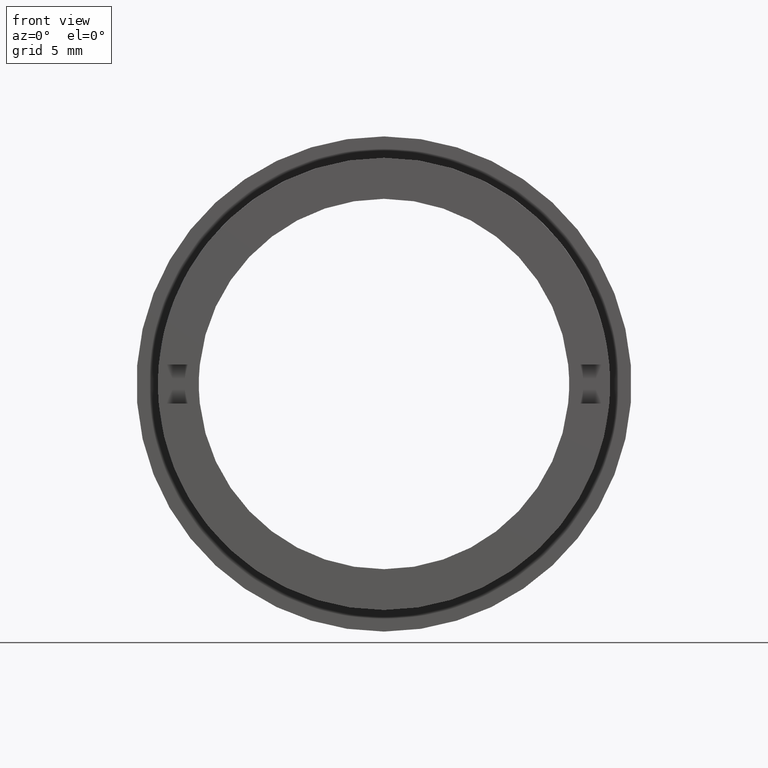
[diagram: clean part render]
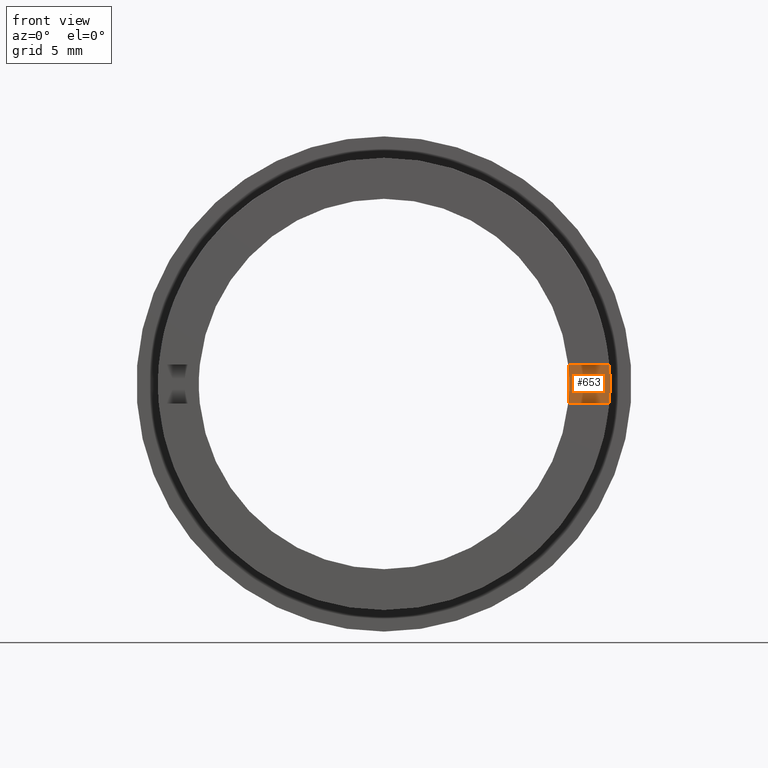
[diagram: same view with one face highlighted and labeled with its STEP entity id]
A machine part, front view. The second image highlights one B-rep face of the part: STEP entity #653.
In plain terms, the highlighted planar face has unit normal (0, 1, 0).
Its self-contained STEP definition (entity closure, byte-faithful):
#5 = CIRCLE ( 'NONE', #359, 11.59999999999999800 ) ;
#20 = CARTESIAN_POINT ( 'NONE',  ( -39.50000000000002100, 2.000000000000000000, -0.9999999999999995600 ) ) ;
#27 = LINE ( 'NONE', #20, #64 ) ;
#64 = VECTOR ( 'NONE', #563, 1000.000000000000000 ) ;
#98 = AXIS2_PLACEMENT_3D ( 'NONE', #392, #919, #839 ) ;
#116 = ORIENTED_EDGE ( 'NONE', *, *, #402, .T. ) ;
#125 = CIRCLE ( 'NONE', #98, 9.499999999999996400 ) ;
#139 = FACE_OUTER_BOUND ( 'NONE', #1098, .T. ) ;
#188 = CARTESIAN_POINT ( 'NONE',  ( 9.447221813845589000, 1.999999999999998200, 1.000000000000000200 ) ) ;
#255 = PLANE ( 'NONE',  #458 ) ;
#264 = CARTESIAN_POINT ( 'NONE',  ( 9.447221813845587200, 2.000000000000000000, -0.9999999999999995600 ) ) ;
#359 = AXIS2_PLACEMENT_3D ( 'NONE', #553, #1070, #457 ) ;
#364 = ORIENTED_EDGE ( 'NONE', *, *, #535, .T. ) ;
#392 = CARTESIAN_POINT ( 'NONE',  ( 0.0000000000000000000, 1.999999999999998200, 0.0000000000000000000 ) ) ;
#402 = EDGE_CURVE ( 'NONE', #637, #719, #27, .T. ) ;
#426 = DIRECTION ( 'NONE',  ( 0.0000000000000000000, 1.000000000000000000, 0.0000000000000000000 ) ) ;
#457 = DIRECTION ( 'NONE',  ( 1.154631945610162600E-014, 0.0000000000000000000, 1.000000000000000000 ) ) ;
#458 = AXIS2_PLACEMENT_3D ( 'NONE', #705, #426, #955 ) ;
#490 = VERTEX_POINT ( 'NONE', #188 ) ;
#515 = CARTESIAN_POINT ( 'NONE',  ( 11.55681617055492800, 2.000000000000000000, -0.9999999999999995600 ) ) ;
#535 = EDGE_CURVE ( 'NONE', #719, #793, #5, .T. ) ;
#553 = CARTESIAN_POINT ( 'NONE',  ( 0.0000000000000000000, 1.999999999999998200, 0.0000000000000000000 ) ) ;
#563 = DIRECTION ( 'NONE',  ( 1.000000000000000000, -0.0000000000000000000, -0.0000000000000000000 ) ) ;
#564 = VECTOR ( 'NONE', #1030, 1000.000000000000000 ) ;
#637 = VERTEX_POINT ( 'NONE', #264 ) ;
#653 = ADVANCED_FACE ( 'NONE', ( #139 ), #255, .F. ) ;
#705 = CARTESIAN_POINT ( 'NONE',  ( -39.50000000000002100, 2.000000000000000000, 1.000000000000000200 ) ) ;
#717 = ORIENTED_EDGE ( 'NONE', *, *, #1044, .F. ) ;
#719 = VERTEX_POINT ( 'NONE', #515 ) ;
#793 = VERTEX_POINT ( 'NONE', #851 ) ;
#826 = ORIENTED_EDGE ( 'NONE', *, *, #1120, .T. ) ;
#839 = DIRECTION ( 'NONE',  ( 0.0000000000000000000, 0.0000000000000000000, 1.000000000000000000 ) ) ;
#851 = CARTESIAN_POINT ( 'NONE',  ( 11.55681617055493000, 1.999999999999998200, 1.000000000000000200 ) ) ;
#852 = LINE ( 'NONE', #1113, #564 ) ;
#919 = DIRECTION ( 'NONE',  ( 0.0000000000000000000, 1.000000000000000000, 0.0000000000000000000 ) ) ;
#955 = DIRECTION ( 'NONE',  ( 0.0000000000000000000, -0.0000000000000000000, 1.000000000000000000 ) ) ;
#1030 = DIRECTION ( 'NONE',  ( 1.000000000000000000, -0.0000000000000000000, -0.0000000000000000000 ) ) ;
#1044 = EDGE_CURVE ( 'NONE', #490, #793, #852, .T. ) ;
#1070 = DIRECTION ( 'NONE',  ( -0.0000000000000000000, -1.000000000000000000, -0.0000000000000000000 ) ) ;
#1098 = EDGE_LOOP ( 'NONE', ( #826, #116, #364, #717 ) ) ;
#1113 = CARTESIAN_POINT ( 'NONE',  ( -39.50000000000002100, 2.000000000000000000, 1.000000000000000200 ) ) ;
#1120 = EDGE_CURVE ( 'NONE', #490, #637, #125, .T. ) ;